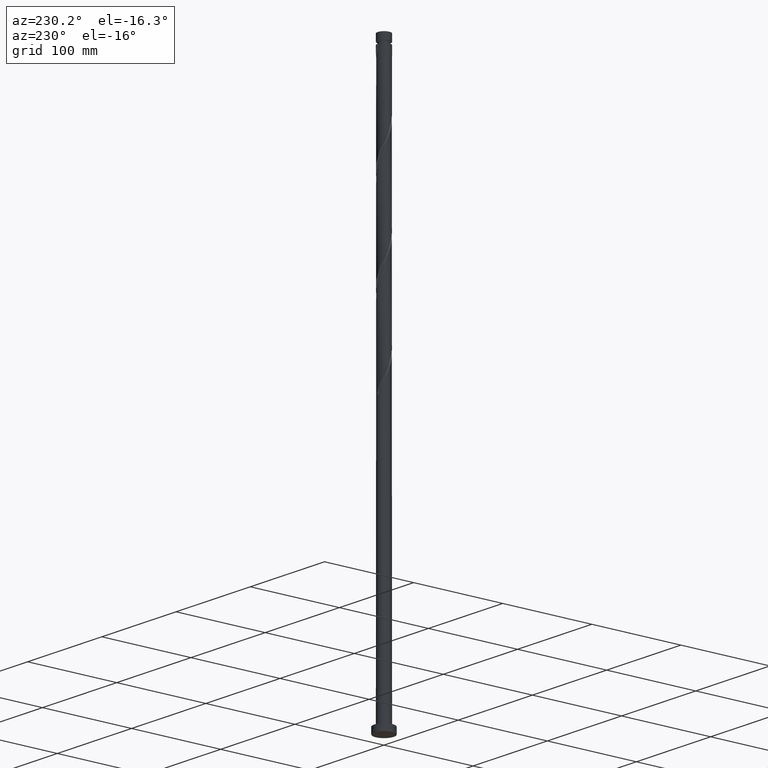
[diagram: clean part render]
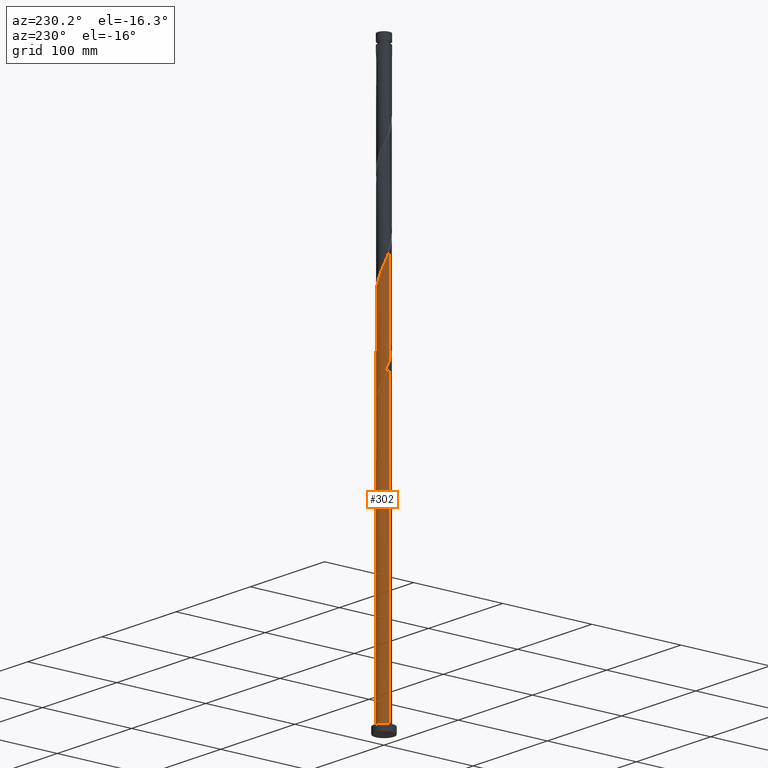
[diagram: same view with one face highlighted and labeled with its STEP entity id]
A machine part, auxiliary view. The second image highlights one B-rep face of the part: STEP entity #302.
In plain terms, the highlighted cylindrical surface (edge-blend (fillet) strip) has radius 7 mm, axis along (-0, -0, -1).
Its self-contained STEP definition (entity closure, byte-faithful):
#26 = CARTESIAN_POINT ( 'NONE',  ( 5.918804784004604969, 3.793216437833843102, 389.4275267457073255 ) ) ;
#29 = VERTEX_POINT ( 'NONE', #864 ) ;
#39 = CARTESIAN_POINT ( 'NONE',  ( -2.028655025169599835, 6.730921170557769173, 411.0451738045308616 ) ) ;
#53 = AXIS2_PLACEMENT_3D ( 'NONE', #1413, #1614, #1768 ) ;
#61 = CARTESIAN_POINT ( 'NONE',  ( -6.761725868623641666, 1.810818399946830137, 428.0304679221779907 ) ) ;
#107 = CARTESIAN_POINT ( 'NONE',  ( -3.230916837831620647, 6.243550064060092275, 309.1334090986485421 ) ) ;
#128 = CARTESIAN_POINT ( 'NONE',  ( -4.323153652638917599, 5.543562348443775711, 312.2216443927660521 ) ) ;
#140 = CARTESIAN_POINT ( 'NONE',  ( -5.121024193531046542, 4.816207244780714269, 321.4863502751192641 ) ) ;
#148 =( BOUNDED_CURVE ( )  B_SPLINE_CURVE ( 2, ( #1036, #2008, #849, #1685, #1850, #670, #331, #1181, #1694, #140, #158, #1518, #2181, #680, #1706, #1350, #340, #1016, #169, #1528, #1360 ),
 .UNSPECIFIED., .F., .T. ) 
 B_SPLINE_CURVE_WITH_KNOTS ( ( 3, 2, 2, 2, 2, 2, 2, 2, 2, 2, 3 ),
 ( 0.9295293573162902723, 0.9338235294117647189, 0.9411764705882352811, 0.9485294117647058432, 0.9558823529411765163, 0.9632352941176470784, 0.9705882352941176405, 0.9779411764705882026, 0.9852941176470588758, 0.9926470588235294379, 1.000000000000000000 ),
 .UNSPECIFIED. ) 
 CURVE ( )  GEOMETRIC_REPRESENTATION_ITEM ( )  RATIONAL_B_SPLINE_CURVE ( ( 0.9072066346053069275, 0.9068261157890739055, 0.9090909090909453649, 0.9052128875409765074, 0.9090909090909453649, 0.9052128875409765074, 0.9090909090909453649, 0.9052128875409765074, 0.9090909090909453649, 0.9052128875409765074, 0.9090909090909453649, 0.9052128875409765074, 0.9090909090909453649, 0.9052128875409765074, 0.9090909090909453649, 0.9052128875409765074, 0.9090909090909453649, 0.9052128875409765074, 0.9090909090909453649, 0.9052128875409765074, 0.9090909090909453649 ) ) 
 REPRESENTATION_ITEM ( '' )  );
#155 = EDGE_CURVE ( 'NONE', #857, #407, #206, .T. ) ;
#158 = CARTESIAN_POINT ( 'NONE',  ( -4.634938729834690463, 5.245697567595597022, 319.9422326280603102 ) ) ;
#160 = CARTESIAN_POINT ( 'NONE',  ( 2.426987120929425146, 6.565800295077732329, 400.2363502751190936 ) ) ;
#169 = CARTESIAN_POINT ( 'NONE',  ( 0.1087425470572637026, 6.999155310354205461, 307.5892914515897587 ) ) ;
#175 = ORIENTED_EDGE ( 'NONE', *, *, #1571, .F. ) ;
#178 = DIRECTION ( 'NONE',  ( -1.000000000000000000, 0.000000000000000000, 0.000000000000000000 ) ) ;
#194 = CARTESIAN_POINT ( 'NONE',  ( 1.392982411949276189, 6.859999999999998543, 304.5010561574720782 ) ) ;
#196 = CARTESIAN_POINT ( 'NONE',  ( 6.216916180193686969, 3.217134316196026855, 387.8834090986485421 ) ) ;
#198 = EDGE_CURVE ( 'NONE', #1590, #706, #1756, .T. ) ;
#206 = LINE ( 'NONE', #1596, #1724 ) ;
#208 = CARTESIAN_POINT ( 'NONE',  ( -6.033786423897991469, 3.607514713233053616, 423.3981149810013562 ) ) ;
#260 = EDGE_CURVE ( 'NONE', #407, #791, #2114, .T. ) ;
#271 = CARTESIAN_POINT ( 'NONE',  ( -1.392982411949273525, 6.860000000000008313, 304.5010561574720782 ) ) ;
#302 = ADVANCED_FACE ( 'NONE', ( #1744 ), #1100, .T. ) ;
#324 = CARTESIAN_POINT ( 'NONE',  ( -7.000000000000000000, 0.000000000000000000, 630.0000000000000000 ) ) ;
#331 = CARTESIAN_POINT ( 'NONE',  ( -6.216916180193678088, 3.217134316196022858, 326.1187032162957280 ) ) ;
#333 = CARTESIAN_POINT ( 'NONE',  ( 5.519914488767827088, 4.304711841307285347, 390.9716443927662226 ) ) ;
#340 = CARTESIAN_POINT ( 'NONE',  ( -1.179200414852471956, 6.899962781175834614, 310.6775267457074960 ) ) ;
#342 = CARTESIAN_POINT ( 'NONE',  ( 3.035398116768321941, 6.340906819069966005, 398.6922326280601965 ) ) ;
#349 = CARTESIAN_POINT ( 'NONE',  ( 0.000000000000000000, 0.000000000000000000, 304.5010561574720782 ) ) ;
#350 = CARTESIAN_POINT ( 'NONE',  ( -1.392982411949273525, 6.860000000000008313, 304.5010561574720782 ) ) ;
#376 = ORIENTED_EDGE ( 'NONE', *, *, #810, .F. ) ;
#407 = VERTEX_POINT ( 'NONE', #589 ) ;
#426 = CARTESIAN_POINT ( 'NONE',  ( -7.000000000000009770, -5.348070149402561834E-15, 432.4028473827781340 ) ) ;
#505 = CARTESIAN_POINT ( 'NONE',  ( 1.179200414852475287, 6.899962781175845272, 403.3245855692367741 ) ) ;
#561 = CARTESIAN_POINT ( 'NONE',  ( -6.593928833002409284, 2.437384573822551914, 426.4863502751190936 ) ) ;
#588 = CARTESIAN_POINT ( 'NONE',  ( -5.650978539377443433, 4.131154989527226817, 421.8539973339426865 ) ) ;
#589 = CARTESIAN_POINT ( 'NONE',  ( 7.000000000000000000, 8.572527594031473190E-16, 7.000000000000000000 ) ) ;
#608 = CARTESIAN_POINT ( 'NONE',  ( -4.795662153747906942, 5.099178807132588531, 313.7657620398250629 ) ) ;
#625 = AXIS2_PLACEMENT_3D ( 'NONE', #641, #1817, #1463 ) ;
#641 = CARTESIAN_POINT ( 'NONE',  ( 0.000000000000000000, 0.000000000000000000, 7.000000000000000000 ) ) ;
#651 = DIRECTION ( 'NONE',  ( 0.000000000000000000, -0.000000000000000000, -1.000000000000000000 ) ) ;
#670 = CARTESIAN_POINT ( 'NONE',  ( -6.515027576382760977, 2.641052194558206168, 327.6628208633543977 ) ) ;
#680 = CARTESIAN_POINT ( 'NONE',  ( -3.035398116768316168, 6.340906819069959788, 315.3098796868839031 ) ) ;
#688 = DIRECTION ( 'NONE',  ( -0.000000000000000000, -0.000000000000000000, -1.000000000000000000 ) ) ;
#706 = VERTEX_POINT ( 'NONE', #1507 ) ;
#728 = CARTESIAN_POINT ( 'NONE',  ( -6.979331644137407586, 0.5375219075929535961, 431.1187032162955575 ) ) ;
#738 = EDGE_CURVE ( 'NONE', #1590, #1833, #1776, .T. ) ;
#739 = CARTESIAN_POINT ( 'NONE',  ( -4.795662153747906942, 5.099178807132588531, 418.7657620398250629 ) ) ;
#785 = CARTESIAN_POINT ( 'NONE',  ( -5.268170654856897173, 4.654795265821399575, 315.3098796868838463 ) ) ;
#791 = VERTEX_POINT ( 'NONE', #1520 ) ;
#807 = CARTESIAN_POINT ( 'NONE',  ( -6.593928833002409284, 2.437384573822551914, 321.4863502751190936 ) ) ;
#810 = EDGE_CURVE ( 'NONE', #857, #842, #844, .T. ) ;
#820 = LINE ( 'NONE', #324, #1638 ) ;
#842 = VERTEX_POINT ( 'NONE', #426 ) ;
#844 =( BOUNDED_CURVE ( )  B_SPLINE_CURVE ( 2, ( #1202, #1884, #1852, #1006, #1018, #1039, #196, #26, #333, #2002, #1167, #2185, #1687, #342, #160, #2024, #505, #1183, #1860, #1696, #854, #39, #2106, #1613, #1237, #1566, #739, #1223, #588, #208, #1918, #561, #61, #1213, #728, #2057, #2070 ),
 .UNSPECIFIED., .F., .T. ) 
 B_SPLINE_CURVE_WITH_KNOTS ( ( 3, 2, 2, 2, 2, 2, 2, 2, 2, 2, 2, 2, 2, 2, 2, 2, 2, 2, 3 ),
 ( 0.1795293573162908274, 0.1838235294117647189, 0.1911764705882352811, 0.1985294117647058432, 0.2058823529411765163, 0.2132352941176470784, 0.2205882352941176405, 0.2279411764705882026, 0.2352941176470588758, 0.2426470588235294379, 0.2500000000000000000, 0.2573529411764705621, 0.2647058823529411242, 0.2720588235294117974, 0.2794117647058823595, 0.2867647058823529216, 0.2941176470588234837, 0.3014705882352941568, 0.3045293573162907164 ),
 .UNSPECIFIED. ) 
 CURVE ( )  GEOMETRIC_REPRESENTATION_ITEM ( )  RATIONAL_B_SPLINE_CURVE ( ( 0.9072066346053130337, 0.9068261157890803448, 0.9090909090909514711, 0.9052128875409826136, 0.9090909090909514711, 0.9052128875409826136, 0.9090909090909514711, 0.9052128875409826136, 0.9090909090909514711, 0.9052128875409826136, 0.9090909090909514711, 0.9052128875409826136, 0.9090909090909514711, 0.9052128875409826136, 0.9090909090909514711, 0.9052128875409826136, 0.9090909090909514711, 0.9052128875409826136, 0.9090909090909514711, 0.9052128875409826136, 0.9090909090909514711, 0.9052128875409826136, 0.9090909090909514711, 0.9052128875409826136, 0.9090909090909514711, 0.9052128875409826136, 0.9090909090909514711, 0.9052128875409826136, 0.9090909090909514711, 0.9052128875409826136, 0.9090909090909514711, 0.9052128875409826136, 0.9090909090909514711, 0.9052128875409826136, 0.9090909090909514711, 0.9074776808428537400, 0.9072066346053131447 ) ) 
 REPRESENTATION_ITEM ( '' )  );
#849 = CARTESIAN_POINT ( 'NONE',  ( -6.959264651295729465, 0.7540792486375302861, 332.2951738045309753 ) ) ;
#854 = CARTESIAN_POINT ( 'NONE',  ( -1.392982411949273525, 6.860000000000008313, 409.5010561574720782 ) ) ;
#857 = VERTEX_POINT ( 'NONE', #1053 ) ;
#864 = CARTESIAN_POINT ( 'NONE',  ( -7.000000000000000888, -3.310425544993339615E-14, 334.0992649321662498 ) ) ;
#866 = ORIENTED_EDGE ( 'NONE', *, *, #1529, .F. ) ;
#885 = DIRECTION ( 'NONE',  ( -0.000000000000000000, -0.000000000000000000, -1.000000000000000000 ) ) ;
#905 = ORIENTED_EDGE ( 'NONE', *, *, #155, .T. ) ;
#926 = AXIS2_PLACEMENT_3D ( 'NONE', #349, #651, #178 ) ;
#945 = CARTESIAN_POINT ( 'NONE',  ( -2.629785931500610907, 6.487235617308932056, 307.5892914515897019 ) ) ;
#987 = CARTESIAN_POINT ( 'NONE',  ( -6.929522904244872272, 1.184252226071107694, 324.5745855692367741 ) ) ;
#1004 = DIRECTION ( 'NONE',  ( -0.000000000000000000, -0.000000000000000000, -1.000000000000000000 ) ) ;
#1006 = CARTESIAN_POINT ( 'NONE',  ( 6.889388918561535569, 1.398950086389859182, 383.2510561574720782 ) ) ;
#1016 = CARTESIAN_POINT ( 'NONE',  ( -0.5398247046144223349, 7.009231791266177680, 309.1334090986485990 ) ) ;
#1018 = CARTESIAN_POINT ( 'NONE',  ( 6.702208247472153602, 2.020001140474031676, 384.7951738045310321 ) ) ;
#1021 = EDGE_LOOP ( 'NONE', ( #376, #905, #1390, #1070, #2011, #1437, #175, #866 ) ) ;
#1036 = CARTESIAN_POINT ( 'NONE',  ( -7.000000000000000888, -3.310425544993339615E-14, 334.0992649321662498 ) ) ;
#1039 = CARTESIAN_POINT ( 'NONE',  ( 6.515027576382768970, 2.641052194558210164, 386.3392914515897019 ) ) ;
#1053 = CARTESIAN_POINT ( 'NONE',  ( 7.000000000000011546, 5.796232452425122772E-15, 379.9028473827780772 ) ) ;
#1070 = ORIENTED_EDGE ( 'NONE', *, *, #2083, .F. ) ;
#1100 = CYLINDRICAL_SURFACE ( 'NONE', #53, 7.000000000000000000 ) ;
#1112 = CARTESIAN_POINT ( 'NONE',  ( -6.313857628450200821, 3.022449643527802543, 319.9422326280603102 ) ) ;
#1142 = CARTESIAN_POINT ( 'NONE',  ( -6.979331644137407586, 0.5375219075929535961, 326.1187032162957280 ) ) ;
#1167 = CARTESIAN_POINT ( 'NONE',  ( 4.634938729834701121, 5.245697567595602351, 394.0598796868837894 ) ) ;
#1181 = CARTESIAN_POINT ( 'NONE',  ( -5.918804784004594310, 3.793216437833842214, 324.5745855692367741 ) ) ;
#1183 = CARTESIAN_POINT ( 'NONE',  ( 0.5398247046144263317, 7.009231791266186562, 404.8687032162955575 ) ) ;
#1202 = CARTESIAN_POINT ( 'NONE',  ( 7.000000000000011546, 5.796232452425122772E-15, 379.9028473827780203 ) ) ;
#1213 = CARTESIAN_POINT ( 'NONE',  ( -6.929522904244872272, 1.184252226071107694, 429.5745855692367172 ) ) ;
#1223 = CARTESIAN_POINT ( 'NONE',  ( -5.268170654856897173, 4.654795265821399575, 420.3098796868836189 ) ) ;
#1237 = CARTESIAN_POINT ( 'NONE',  ( -3.777035245235269123, 5.893556206251933105, 415.6775267457073824 ) ) ;
#1350 = CARTESIAN_POINT ( 'NONE',  ( -1.818576125090521911, 6.790693771085488883, 312.2216443927663363 ) ) ;
#1360 = CARTESIAN_POINT ( 'NONE',  ( 1.392982411949276189, 6.859999999999998543, 304.5010561574720782 ) ) ;
#1390 = ORIENTED_EDGE ( 'NONE', *, *, #260, .T. ) ;
#1413 = CARTESIAN_POINT ( 'NONE',  ( 0.000000000000000000, 0.000000000000000000, 630.0000000000000000 ) ) ;
#1437 = ORIENTED_EDGE ( 'NONE', *, *, #738, .T. ) ;
#1454 = CARTESIAN_POINT ( 'NONE',  ( -6.761725868623641666, 1.810818399946830137, 323.0304679221779907 ) ) ;
#1463 = DIRECTION ( 'NONE',  ( 1.000000000000000000, 0.000000000000000000, 0.000000000000000000 ) ) ;
#1474 = CARTESIAN_POINT ( 'NONE',  ( -7.000000000000007994, 0.2691583152138015134, 326.7594416307183565 ) ) ;
#1507 = CARTESIAN_POINT ( 'NONE',  ( -7.000000000000007994, 1.425156123611743702E-14, 327.4028473827779635 ) ) ;
#1518 = CARTESIAN_POINT ( 'NONE',  ( -4.148853266138337048, 5.675187890410485103, 318.3981149810015836 ) ) ;
#1520 = CARTESIAN_POINT ( 'NONE',  ( -7.000000000000000000, 0.000000000000000000, 7.000000000000000000 ) ) ;
#1526 = CARTESIAN_POINT ( 'NONE',  ( -7.000000000000000000, 0.000000000000000000, 630.0000000000000000 ) ) ;
#1528 = CARTESIAN_POINT ( 'NONE',  ( 0.7573097987289503230, 6.989078829442237684, 306.0451738045308616 ) ) ;
#1529 = EDGE_CURVE ( 'NONE', #842, #29, #820, .T. ) ;
#1566 = CARTESIAN_POINT ( 'NONE',  ( -4.323153652638917599, 5.543562348443775711, 417.2216443927662226 ) ) ;
#1571 = EDGE_CURVE ( 'NONE', #29, #1833, #148, .T. ) ;
#1590 = VERTEX_POINT ( 'NONE', #350 ) ;
#1596 = CARTESIAN_POINT ( 'NONE',  ( 7.000000000000000000, 8.572527594031473190E-16, 630.0000000000000000 ) ) ;
#1613 = CARTESIAN_POINT ( 'NONE',  ( -3.230916837831620647, 6.243550064060092275, 414.1334090986484853 ) ) ;
#1614 = DIRECTION ( 'NONE',  ( -0.000000000000000000, -0.000000000000000000, -1.000000000000000000 ) ) ;
#1623 = CARTESIAN_POINT ( 'NONE',  ( -6.033786423897991469, 3.607514713233053616, 318.3981149810014131 ) ) ;
#1635 = CARTESIAN_POINT ( 'NONE',  ( -2.028655025169599835, 6.730921170557769173, 306.0451738045308048 ) ) ;
#1638 = VECTOR ( 'NONE', #1004, 1000.000000000000000 ) ;
#1685 = CARTESIAN_POINT ( 'NONE',  ( -6.889388918561525799, 1.398950086389860292, 330.7510561574720782 ) ) ;
#1687 = CARTESIAN_POINT ( 'NONE',  ( 3.592125691453331271, 6.008047354740230439, 397.1481149810015268 ) ) ;
#1694 = CARTESIAN_POINT ( 'NONE',  ( -5.519914488767819982, 4.304711841307277354, 323.0304679221780475 ) ) ;
#1696 = CARTESIAN_POINT ( 'NONE',  ( -0.7573097987289503230, 6.989078829442247454, 407.9569385104130674 ) ) ;
#1702 = LINE ( 'NONE', #1526, #2159 ) ;
#1706 = CARTESIAN_POINT ( 'NONE',  ( -2.426987120929418040, 6.565800295077724336, 313.7657620398250629 ) ) ;
#1724 = VECTOR ( 'NONE', #885, 1000.000000000000000 ) ;
#1744 = FACE_OUTER_BOUND ( 'NONE', #1021, .T. ) ;
#1756 =( BOUNDED_CURVE ( )  B_SPLINE_CURVE ( 2, ( #271, #1635, #945, #107, #1804, #128, #608, #785, #1976, #1623, #1112, #807, #1454, #987, #1142, #1474, #1989 ),
 .UNSPECIFIED., .F., .T. ) 
 B_SPLINE_CURVE_WITH_KNOTS ( ( 3, 2, 2, 2, 2, 2, 2, 2, 3 ),
 ( 0.000000000000000000, 0.007352941176470562112, 0.01470588235294112422, 0.02205882352941179736, 0.02941176470588236294, 0.03676470588235292158, 0.04411764705882348370, 0.05147058823529415683, 0.05452935731629019595 ),
 .UNSPECIFIED. ) 
 CURVE ( )  GEOMETRIC_REPRESENTATION_ITEM ( )  RATIONAL_B_SPLINE_CURVE ( ( 0.9090909090909514711, 0.9052128875409826136, 0.9090909090909514711, 0.9052128875409826136, 0.9090909090909514711, 0.9052128875409826136, 0.9090909090909514711, 0.9052128875409826136, 0.9090909090909514711, 0.9052128875409826136, 0.9090909090909514711, 0.9052128875409826136, 0.9090909090909514711, 0.9052128875409826136, 0.9090909090909514711, 0.9074776808428539621, 0.9072066346053131447 ) ) 
 REPRESENTATION_ITEM ( '' )  );
#1768 = DIRECTION ( 'NONE',  ( -1.000000000000000000, 0.000000000000000000, 0.000000000000000000 ) ) ;
#1776 = CIRCLE ( 'NONE', #926, 7.000000000000000000 ) ;
#1804 = CARTESIAN_POINT ( 'NONE',  ( -3.777035245235269123, 5.893556206251933105, 310.6775267457074392 ) ) ;
#1817 = DIRECTION ( 'NONE',  ( 0.000000000000000000, 0.000000000000000000, 1.000000000000000000 ) ) ;
#1833 = VERTEX_POINT ( 'NONE', #194 ) ;
#1850 = CARTESIAN_POINT ( 'NONE',  ( -6.702208247472142055, 2.020001140474032564, 329.2069385104132948 ) ) ;
#1852 = CARTESIAN_POINT ( 'NONE',  ( 6.959264651295738346, 0.7540792486375301751, 381.7069385104131811 ) ) ;
#1860 = CARTESIAN_POINT ( 'NONE',  ( -0.1087425470572647851, 6.999155310354217008, 406.4128208633543977 ) ) ;
#1884 = CARTESIAN_POINT ( 'NONE',  ( 7.000000000000007105, 0.3781398857548853298, 380.8067666147907744 ) ) ;
#1918 = CARTESIAN_POINT ( 'NONE',  ( -6.313857628450200821, 3.022449643527802543, 424.9422326280603102 ) ) ;
#1976 = CARTESIAN_POINT ( 'NONE',  ( -5.650978539377443433, 4.131154989527226817, 316.8539973339426297 ) ) ;
#1989 = CARTESIAN_POINT ( 'NONE',  ( -7.000000000000007994, 1.425156123611743702E-14, 327.4028473827779635 ) ) ;
#2002 = CARTESIAN_POINT ( 'NONE',  ( 5.121024193531053648, 4.816207244780719599, 392.5157620398249492 ) ) ;
#2008 = CARTESIAN_POINT ( 'NONE',  ( -7.000000000000002665, 0.3781398857548354808, 333.1953457001534957 ) ) ;
#2011 = ORIENTED_EDGE ( 'NONE', *, *, #198, .F. ) ;
#2024 = CARTESIAN_POINT ( 'NONE',  ( 1.818576125090523465, 6.790693771085499542, 401.7804679221778770 ) ) ;
#2057 = CARTESIAN_POINT ( 'NONE',  ( -7.000000000000010658, 0.2691583152137557167, 431.7594416307184133 ) ) ;
#2070 = CARTESIAN_POINT ( 'NONE',  ( -7.000000000000008882, -5.348070149402561834E-15, 432.4028473827781340 ) ) ;
#2083 = EDGE_CURVE ( 'NONE', #706, #791, #1702, .T. ) ;
#2106 = CARTESIAN_POINT ( 'NONE',  ( -2.629785931500610907, 6.487235617308932056, 412.5892914515897587 ) ) ;
#2114 = CIRCLE ( 'NONE', #625, 7.000000000000000000 ) ;
#2159 = VECTOR ( 'NONE', #688, 1000.000000000000000 ) ;
#2181 = CARTESIAN_POINT ( 'NONE',  ( -3.592125691453326830, 6.008047354740221557, 316.8539973339426865 ) ) ;
#2185 = CARTESIAN_POINT ( 'NONE',  ( 4.148853266138341489, 5.675187890410493097, 395.6039973339425728 ) ) ;